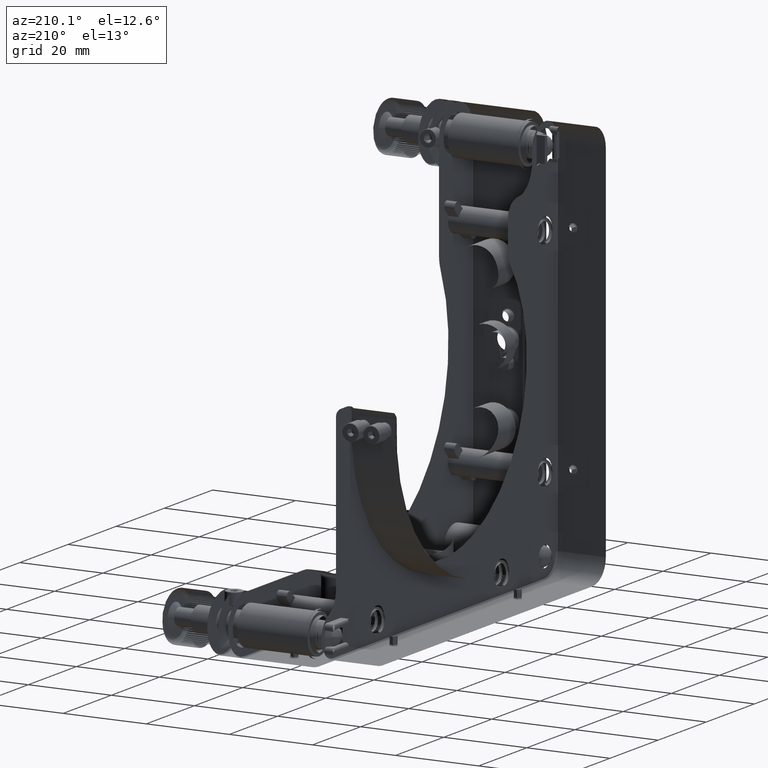
[diagram: clean part render]
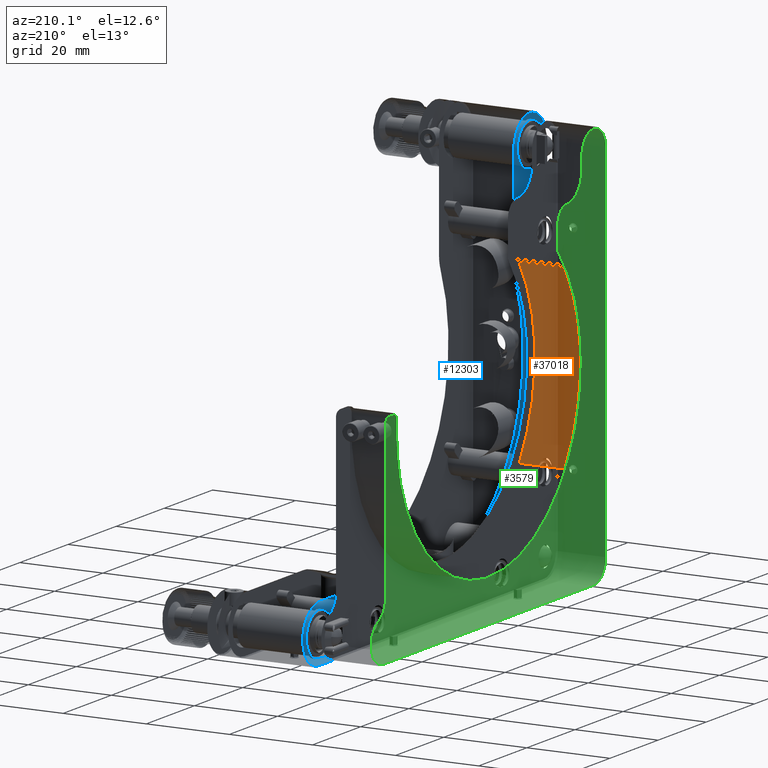
[diagram: same view with three faces highlighted in distinct colors, each labeled with its STEP entity id]
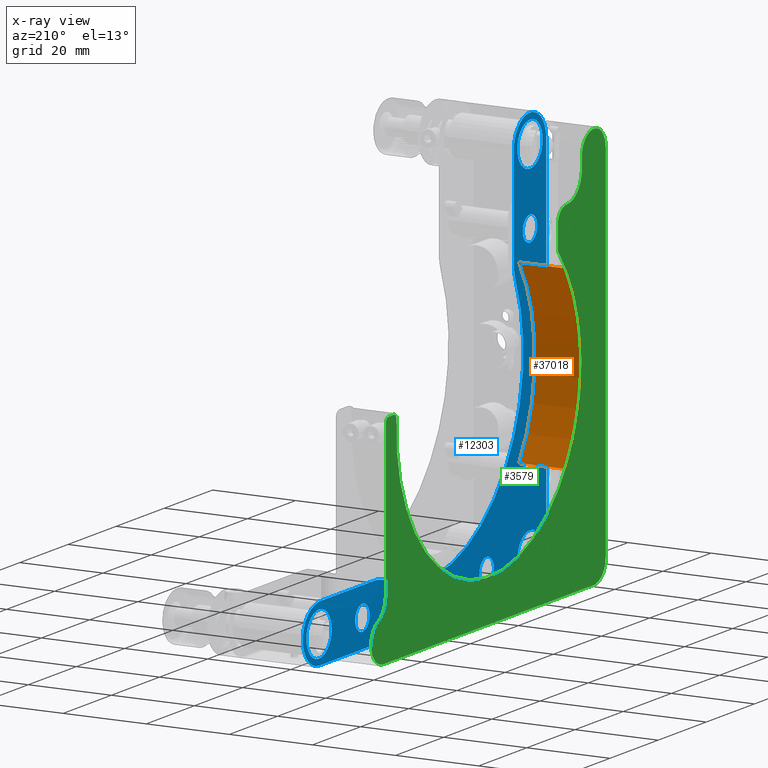
[diagram: x-ray of the same camera — body ghosted, the three highlighted faces saturated]
A machine part, auxiliary view with three faces highlighted in distinct colors.
The next image is the same camera in x-ray (body ghosted, the three faces saturated) — at least one of them is partly hidden behind the body in this view.
Their STEP definitions:

[orange] entity #37018 — the highlighted cylindrical surface (partial cylindrical patch) has radius 38.1 mm, axis along (-1, -0, -0).
#1055 = EDGE_LOOP ( 'NONE', ( #35704, #42558, #31043, #50745 ) ) ;
#1205 = CARTESIAN_POINT ( 'NONE',  ( -13.50000000000000000, -31.51381214945413234, 21.41237127944769369 ) ) ;
#1220 = CARTESIAN_POINT ( 'NONE',  ( -24.20000000000002061, -31.51381214945412523, -21.41237127944770791 ) ) ;
#4214 = CARTESIAN_POINT ( 'NONE',  ( -24.20000000000002061, -31.51381214945413234, 21.41237127944769725 ) ) ;
#5276 = DIRECTION ( 'NONE',  ( -1.000000000000000000, -0.000000000000000000, -0.000000000000000000 ) ) ;
#6664 = DIRECTION ( 'NONE',  ( 1.000000000000000000, 0.000000000000000000, 0.000000000000000000 ) ) ;
#6797 = CARTESIAN_POINT ( 'NONE',  ( -13.50000000000000000, -1.734723475976807094E-15, 0.000000000000000000 ) ) ;
#6810 = AXIS2_PLACEMENT_3D ( 'NONE', #6797, #27150, #10054 ) ;
#10054 = DIRECTION ( 'NONE',  ( 0.000000000000000000, 0.000000000000000000, 1.000000000000000000 ) ) ;
#17466 = DIRECTION ( 'NONE',  ( -1.000000000000000000, -0.000000000000000000, -0.000000000000000000 ) ) ;
#20874 = VERTEX_POINT ( 'NONE', #44682 ) ;
#21548 = LINE ( 'NONE', #42383, #46385 ) ;
#22586 = EDGE_CURVE ( 'NONE', #33685, #41620, #48254, .T. ) ;
#23820 = AXIS2_PLACEMENT_3D ( 'NONE', #53437, #17466, #25067 ) ;
#25067 = DIRECTION ( 'NONE',  ( 0.000000000000000000, 0.000000000000000000, 1.000000000000000000 ) ) ;
#25944 = VECTOR ( 'NONE', #6664, 1000.000000000000000 ) ;
#26338 = VERTEX_POINT ( 'NONE', #1205 ) ;
#27150 = DIRECTION ( 'NONE',  ( -1.000000000000000000, -0.000000000000000000, -0.000000000000000000 ) ) ;
#31043 = ORIENTED_EDGE ( 'NONE', *, *, #45499, .T. ) ;
#32469 = DIRECTION ( 'NONE',  ( -1.000000000000000000, 0.000000000000000000, 0.000000000000000000 ) ) ;
#32949 = EDGE_CURVE ( 'NONE', #33685, #20874, #47561, .T. ) ;
#33685 = VERTEX_POINT ( 'NONE', #1220 ) ;
#35704 = ORIENTED_EDGE ( 'NONE', *, *, #22586, .F. ) ;
#37018 = ADVANCED_FACE ( 'NONE', ( #52261 ), #47935, .T. ) ;
#38629 = CARTESIAN_POINT ( 'NONE',  ( -13.50000000000000000, -31.51381214945412523, -21.41237127944771146 ) ) ;
#40042 = CARTESIAN_POINT ( 'NONE',  ( -24.20000000000003482, -1.734723475976807094E-15, 0.000000000000000000 ) ) ;
#41350 = AXIS2_PLACEMENT_3D ( 'NONE', #40042, #32469, #44105 ) ;
#41620 = VERTEX_POINT ( 'NONE', #4214 ) ;
#42383 = CARTESIAN_POINT ( 'NONE',  ( -13.50000000000000000, -31.51381214945413234, 21.41237127944769725 ) ) ;
#42558 = ORIENTED_EDGE ( 'NONE', *, *, #32949, .T. ) ;
#42852 = CIRCLE ( 'NONE', #23820, 38.09999999999999432 ) ;
#44105 = DIRECTION ( 'NONE',  ( -9.106159978880871232E-17, 0.000000000000000000, 1.000000000000000000 ) ) ;
#44682 = CARTESIAN_POINT ( 'NONE',  ( -13.50000000000000000, -31.51381214945413234, -21.41237127944770080 ) ) ;
#45499 = EDGE_CURVE ( 'NONE', #20874, #26338, #42852, .T. ) ;
#46385 = VECTOR ( 'NONE', #5276, 1000.000000000000000 ) ;
#47561 = LINE ( 'NONE', #38629, #25944 ) ;
#47935 = CYLINDRICAL_SURFACE ( 'NONE', #6810, 38.09999999999999432 ) ;
#47953 = EDGE_CURVE ( 'NONE', #26338, #41620, #21548, .T. ) ;
#48254 = CIRCLE ( 'NONE', #41350, 38.10000000000002274 ) ;
#50745 = ORIENTED_EDGE ( 'NONE', *, *, #47953, .T. ) ;
#52261 = FACE_OUTER_BOUND ( 'NONE', #1055, .T. ) ;
#53437 = CARTESIAN_POINT ( 'NONE',  ( -13.50000000000000000, -1.734723475976807094E-15, 0.000000000000000000 ) ) ;

[blue] entity #12303 — the highlighted planar face has unit normal (1, -0, 0).
#76 = EDGE_CURVE ( 'NONE', #19224, #19224, #49901, .T. ) ;
#457 = PLANE ( 'NONE',  #7038 ) ;
#966 = CARTESIAN_POINT ( 'NONE',  ( -9.000000000000001776, -43.79999999999999716, -38.55000000000000426 ) ) ;
#1141 = CIRCLE ( 'NONE', #42665, 9.749999999999994671 ) ;
#1405 = ORIENTED_EDGE ( 'NONE', *, *, #34274, .T. ) ;
#1490 = VERTEX_POINT ( 'NONE', #34571 ) ;
#1742 = EDGE_CURVE ( 'NONE', #35210, #35210, #28833, .T. ) ;
#1749 = VERTEX_POINT ( 'NONE', #33172 ) ;
#2232 = ORIENTED_EDGE ( 'NONE', *, *, #19371, .T. ) ;
#2670 = EDGE_CURVE ( 'NONE', #52255, #33224, #49234, .T. ) ;
#3207 = LINE ( 'NONE', #12423, #41267 ) ;
#3714 = DIRECTION ( 'NONE',  ( -1.000000000000000000, -0.000000000000000000, -0.000000000000000000 ) ) ;
#4142 = CARTESIAN_POINT ( 'NONE',  ( -9.000000000000001776, 25.80000000000000071, -43.79999999999999716 ) ) ;
#4504 = CARTESIAN_POINT ( 'NONE',  ( -8.999999999999994671, -37.05000000000000426, 19.62963321104091463 ) ) ;
#4744 = ORIENTED_EDGE ( 'NONE', *, *, #76, .T. ) ;
#5039 = VERTEX_POINT ( 'NONE', #4504 ) ;
#5068 = DIRECTION ( 'NONE',  ( 0.000000000000000000, 0.000000000000000000, -1.000000000000000000 ) ) ;
#5180 = ORIENTED_EDGE ( 'NONE', *, *, #18703, .T. ) ;
#5262 = CARTESIAN_POINT ( 'NONE',  ( -8.999999999966895814, -43.80000000000004690, -50.55000000003308713 ) ) ;
#5343 = AXIS2_PLACEMENT_3D ( 'NONE', #4142, #20421, #33407 ) ;
#5398 = EDGE_CURVE ( 'NONE', #36537, #36537, #21791, .T. ) ;
#6421 = VERTEX_POINT ( 'NONE', #52170 ) ;
#6422 = CARTESIAN_POINT ( 'NONE',  ( -9.000000000000001776, -43.79999999999997584, 25.79999999999998295 ) ) ;
#6779 = DIRECTION ( 'NONE',  ( 0.000000000000000000, 0.000000000000000000, -1.000000000000000000 ) ) ;
#6911 = AXIS2_PLACEMENT_3D ( 'NONE', #11950, #24171, #36348 ) ;
#6915 = DIRECTION ( 'NONE',  ( 0.000000000000000000, 0.000000000000000000, -1.000000000000000000 ) ) ;
#7038 = AXIS2_PLACEMENT_3D ( 'NONE', #45691, #9130, #5068 ) ;
#7161 = ORIENTED_EDGE ( 'NONE', *, *, #7864, .T. ) ;
#7864 = EDGE_CURVE ( 'NONE', #33224, #47692, #1141, .T. ) ;
#8418 = CARTESIAN_POINT ( 'NONE',  ( -9.000000000000001776, 0.000000000000000000, 0.000000000000000000 ) ) ;
#8606 = FACE_BOUND ( 'NONE', #11447, .T. ) ;
#8861 = FACE_BOUND ( 'NONE', #49769, .T. ) ;
#8958 = CIRCLE ( 'NONE', #45286, 6.750000000067757355 ) ;
#9064 = EDGE_CURVE ( 'NONE', #5039, #1749, #14242, .T. ) ;
#9130 = DIRECTION ( 'NONE',  ( 1.000000000000000000, -0.000000000000000000, 0.000000000000000000 ) ) ;
#9490 = DIRECTION ( 'NONE',  ( 0.000000000000000000, 0.000000000000000000, 1.000000000000000000 ) ) ;
#10278 = VECTOR ( 'NONE', #30744, 1000.000000000000000 ) ;
#10843 = DIRECTION ( 'NONE',  ( -1.000000000000000000, -0.000000000000000000, -0.000000000000000000 ) ) ;
#11447 = EDGE_LOOP ( 'NONE', ( #47154 ) ) ;
#11592 = AXIS2_PLACEMENT_3D ( 'NONE', #14639, #38451, #9490 ) ;
#11950 = CARTESIAN_POINT ( 'NONE',  ( -9.000000000095299768, -43.79999999999999716, 43.79999999999998295 ) ) ;
#12303 = ADVANCED_FACE ( 'NONE', ( #17552, #8861, #37568, #33525, #25967, #13746, #8606, #42447 ), #457, .T. ) ;
#12423 = CARTESIAN_POINT ( 'NONE',  ( -9.000000000000001776, -50.54999999999998295, 0.000000000000000000 ) ) ;
#12841 = DIRECTION ( 'NONE',  ( 0.000000000000000000, 0.000000000000000000, 1.000000000000000000 ) ) ;
#13690 = EDGE_CURVE ( 'NONE', #28994, #31182, #3207, .T. ) ;
#13746 = FACE_BOUND ( 'NONE', #20649, .T. ) ;
#13996 = ORIENTED_EDGE ( 'NONE', *, *, #39025, .T. ) ;
#14053 = DIRECTION ( 'NONE',  ( 0.000000000000000000, 0.000000000000000000, -1.000000000000000000 ) ) ;
#14242 = LINE ( 'NONE', #35095, #10278 ) ;
#14639 = CARTESIAN_POINT ( 'NONE',  ( -9.000000000000001776, 43.79999999999999716, -43.79999999999999005 ) ) ;
#15009 = CARTESIAN_POINT ( 'NONE',  ( -8.999999999984744647, -50.55000000004483240, -43.79999999999999716 ) ) ;
#15147 = EDGE_LOOP ( 'NONE', ( #4744 ) ) ;
#15231 = EDGE_CURVE ( 'NONE', #6421, #6421, #39261, .T. ) ;
#15974 = CARTESIAN_POINT ( 'NONE',  ( -9.000000000000001776, 50.79999999999999716, -36.79999999999999716 ) ) ;
#16044 = EDGE_CURVE ( 'NONE', #31182, #20188, #8958, .T. ) ;
#16311 = ORIENTED_EDGE ( 'NONE', *, *, #2670, .T. ) ;
#16685 = ORIENTED_EDGE ( 'NONE', *, *, #1742, .T. ) ;
#17552 = FACE_BOUND ( 'NONE', #35992, .T. ) ;
#17787 = DIRECTION ( 'NONE',  ( 0.000000000000000000, 0.000000000000000000, 1.000000000000000000 ) ) ;
#17872 = VECTOR ( 'NONE', #45712, 1000.000000000000000 ) ;
#18054 = VERTEX_POINT ( 'NONE', #966 ) ;
#18099 = EDGE_LOOP ( 'NONE', ( #29660 ) ) ;
#18245 = CIRCLE ( 'NONE', #26026, 3.000000000000006217 ) ;
#18703 = EDGE_CURVE ( 'NONE', #37596, #52255, #50936, .T. ) ;
#19224 = VERTEX_POINT ( 'NONE', #23567 ) ;
#19371 = EDGE_CURVE ( 'NONE', #20188, #37596, #26401, .T. ) ;
#19745 = CARTESIAN_POINT ( 'NONE',  ( -8.874999999993226751, 43.80000000000000426, -36.92499999998238280 ) ) ;
#19940 = CIRCLE ( 'NONE', #43258, 5.249999999999997335 ) ;
#19949 = ORIENTED_EDGE ( 'NONE', *, *, #9064, .T. ) ;
#20188 = VERTEX_POINT ( 'NONE', #5262 ) ;
#20421 = DIRECTION ( 'NONE',  ( -1.000000000000000000, -0.000000000000000000, -0.000000000000000000 ) ) ;
#20540 = CARTESIAN_POINT ( 'NONE',  ( -8.999999999999994671, -37.80886699507389892, 15.85842288970792602 ) ) ;
#20649 = EDGE_LOOP ( 'NONE', ( #50451 ) ) ;
#21401 = CARTESIAN_POINT ( 'NONE',  ( -8.999999999933789852, -43.79999999999999005, -43.79999999999999716 ) ) ;
#21428 = DIRECTION ( 'NONE',  ( -1.000000000000000000, 0.000000000000000000, 0.000000000000000000 ) ) ;
#21514 = ORIENTED_EDGE ( 'NONE', *, *, #13690, .T. ) ;
#21597 = DIRECTION ( 'NONE',  ( 1.000000000000000000, 0.000000000000000000, 0.000000000000000000 ) ) ;
#21791 = CIRCLE ( 'NONE', #5343, 3.000000000000002665 ) ;
#22778 = CARTESIAN_POINT ( 'NONE',  ( -9.000000000019229063, -50.54999999998075566, 43.79999999999997584 ) ) ;
#22901 = VERTEX_POINT ( 'NONE', #20540 ) ;
#23240 = CIRCLE ( 'NONE', #6911, 6.750000000010913936 ) ;
#23567 = CARTESIAN_POINT ( 'NONE',  ( -9.000000000000001776, -25.80000000000000071, -46.80000000000000426 ) ) ;
#23647 = ORIENTED_EDGE ( 'NONE', *, *, #44648, .T. ) ;
#24171 = DIRECTION ( 'NONE',  ( 1.000000000000000000, 0.000000000000000000, 0.000000000000000000 ) ) ;
#24739 = DIRECTION ( 'NONE',  ( 0.000000000000000000, 0.000000000000000000, -1.000000000000000000 ) ) ;
#25560 = CARTESIAN_POINT ( 'NONE',  ( -8.999999999999985789, -46.80000000000001137, 19.62963321104090753 ) ) ;
#25967 = FACE_BOUND ( 'NONE', #15147, .T. ) ;
#26026 = AXIS2_PLACEMENT_3D ( 'NONE', #48187, #10843, #6779 ) ;
#26401 = LINE ( 'NONE', #42887, #36783 ) ;
#28358 = AXIS2_PLACEMENT_3D ( 'NONE', #31024, #47787, #6915 ) ;
#28833 = CIRCLE ( 'NONE', #46981, 5.249999999999997335 ) ;
#28994 = VERTEX_POINT ( 'NONE', #22778 ) ;
#29354 = AXIS2_PLACEMENT_3D ( 'NONE', #25560, #41780, #24739 ) ;
#29660 = ORIENTED_EDGE ( 'NONE', *, *, #15231, .T. ) ;
#29807 = DIRECTION ( 'NONE',  ( 0.000000000000000000, 0.000000000000000000, 1.000000000000000000 ) ) ;
#30231 = VERTEX_POINT ( 'NONE', #38881 ) ;
#30551 = DIRECTION ( 'NONE',  ( -1.000000000000000000, -0.000000000000000000, -0.000000000000000000 ) ) ;
#30602 = CARTESIAN_POINT ( 'NONE',  ( -9.000000000000001776, -43.79999999999999716, 49.04999999999998295 ) ) ;
#30744 = DIRECTION ( 'NONE',  ( -0.000000000000000000, -0.000000000000000000, 1.000000000000000000 ) ) ;
#31024 = CARTESIAN_POINT ( 'NONE',  ( -9.000000000000001776, -25.80000000000000071, -43.79999999999999716 ) ) ;
#31182 = VERTEX_POINT ( 'NONE', #15009 ) ;
#31956 = EDGE_CURVE ( 'NONE', #30231, #30231, #47569, .T. ) ;
#32138 = CARTESIAN_POINT ( 'NONE',  ( -8.874999999999994671, 19.62963321104090753, -36.92500000000000426 ) ) ;
#33115 = ORIENTED_EDGE ( 'NONE', *, *, #16044, .T. ) ;
#33172 = CARTESIAN_POINT ( 'NONE',  ( -9.000000000047650772, -37.05000000004766036, 43.79999999999999716 ) ) ;
#33224 = VERTEX_POINT ( 'NONE', #32138 ) ;
#33274 = DIRECTION ( 'NONE',  ( 0.000000000000000000, 0.000000000000000000, -1.000000000000000000 ) ) ;
#33320 = AXIS2_PLACEMENT_3D ( 'NONE', #8418, #21428, #29807 ) ;
#33407 = DIRECTION ( 'NONE',  ( 0.000000000000000000, 0.000000000000000000, -1.000000000000000000 ) ) ;
#33436 = CARTESIAN_POINT ( 'NONE',  ( -9.000000000000001776, -43.79999999999999716, 43.79999999999998295 ) ) ;
#33525 = FACE_BOUND ( 'NONE', #41373, .T. ) ;
#33647 = AXIS2_PLACEMENT_3D ( 'NONE', #6422, #30551, #14053 ) ;
#33789 = CARTESIAN_POINT ( 'NONE',  ( -8.999999999933796957, 43.79999999999999716, -43.79999999999999005 ) ) ;
#34118 = DIRECTION ( 'NONE',  ( 0.000000000000000000, 0.000000000000000000, -1.000000000000000000 ) ) ;
#34274 = EDGE_CURVE ( 'NONE', #18054, #18054, #19940, .T. ) ;
#34553 = AXIS2_PLACEMENT_3D ( 'NONE', #33789, #50524, #34586 ) ;
#34571 = CARTESIAN_POINT ( 'NONE',  ( -9.000000000000001776, -43.79999999999999716, -28.80000000000000782 ) ) ;
#34586 = DIRECTION ( 'NONE',  ( 0.000000000000000000, 0.000000000000000000, -1.000000000000000000 ) ) ;
#35068 = CARTESIAN_POINT ( 'NONE',  ( -8.999999999984748200, 43.79999999999999716, -50.55000000004483240 ) ) ;
#35083 = EDGE_CURVE ( 'NONE', #1490, #1490, #18245, .T. ) ;
#35095 = CARTESIAN_POINT ( 'NONE',  ( -9.000000000000001776, -37.05000000000001137, 0.000000000000000000 ) ) ;
#35210 = VERTEX_POINT ( 'NONE', #30602 ) ;
#35905 = CIRCLE ( 'NONE', #33320, 41.00000000000001421 ) ;
#35992 = EDGE_LOOP ( 'NONE', ( #16685 ) ) ;
#36005 = CARTESIAN_POINT ( 'NONE',  ( -9.000000000000001776, 25.80000000000000071, -46.80000000000000426 ) ) ;
#36348 = DIRECTION ( 'NONE',  ( 0.000000000000000000, 0.000000000000000000, -1.000000000000000000 ) ) ;
#36537 = VERTEX_POINT ( 'NONE', #36005 ) ;
#36783 = VECTOR ( 'NONE', #47997, 1000.000000000000000 ) ;
#37568 = FACE_BOUND ( 'NONE', #18099, .T. ) ;
#37596 = VERTEX_POINT ( 'NONE', #35068 ) ;
#38451 = DIRECTION ( 'NONE',  ( -1.000000000000000000, -0.000000000000000000, -0.000000000000000000 ) ) ;
#38881 = CARTESIAN_POINT ( 'NONE',  ( -9.000000000000001776, -43.79999999999997584, 22.79999999999997939 ) ) ;
#39025 = EDGE_CURVE ( 'NONE', #22901, #5039, #52663, .T. ) ;
#39261 = CIRCLE ( 'NONE', #11592, 5.250000000000004441 ) ;
#40460 = EDGE_CURVE ( 'NONE', #1749, #28994, #23240, .T. ) ;
#40822 = CARTESIAN_POINT ( 'NONE',  ( -9.000000000000001776, -43.79999999999999716, -43.79999999999999716 ) ) ;
#41267 = VECTOR ( 'NONE', #33274, 1000.000000000000000 ) ;
#41373 = EDGE_LOOP ( 'NONE', ( #42901 ) ) ;
#41626 = CARTESIAN_POINT ( 'NONE',  ( -9.000000000000000000, 19.62963321104090753, -46.80000000000001137 ) ) ;
#41780 = DIRECTION ( 'NONE',  ( 1.000000000000000000, -0.000000000000000000, 0.000000000000000000 ) ) ;
#42447 = FACE_OUTER_BOUND ( 'NONE', #44330, .T. ) ;
#42665 = AXIS2_PLACEMENT_3D ( 'NONE', #41626, #21597, #49986 ) ;
#42764 = DIRECTION ( 'NONE',  ( 1.000000000000000000, 0.000000000000000000, 0.000000000000000000 ) ) ;
#42887 = CARTESIAN_POINT ( 'NONE',  ( -9.000000000000001776, 0.000000000000000000, -50.54999999999998295 ) ) ;
#42901 = ORIENTED_EDGE ( 'NONE', *, *, #5398, .T. ) ;
#43258 = AXIS2_PLACEMENT_3D ( 'NONE', #40822, #3714, #17787 ) ;
#44330 = EDGE_LOOP ( 'NONE', ( #13996, #19949, #52284, #21514, #33115, #2232, #5180, #16311, #7161, #23647 ) ) ;
#44648 = EDGE_CURVE ( 'NONE', #47692, #22901, #35905, .T. ) ;
#45286 = AXIS2_PLACEMENT_3D ( 'NONE', #21401, #42764, #34118 ) ;
#45691 = CARTESIAN_POINT ( 'NONE',  ( -9.000000000000001776, 0.000000000000000000, 0.000000000000000000 ) ) ;
#45712 = DIRECTION ( 'NONE',  ( 0.000000000000000000, -1.000000000000000000, 0.000000000000000000 ) ) ;
#46134 = DIRECTION ( 'NONE',  ( -1.000000000000000000, -0.000000000000000000, -0.000000000000000000 ) ) ;
#46981 = AXIS2_PLACEMENT_3D ( 'NONE', #33436, #46134, #12841 ) ;
#47023 = CARTESIAN_POINT ( 'NONE',  ( -9.000000000000001776, 15.85842288970792957, -37.80886699507390603 ) ) ;
#47154 = ORIENTED_EDGE ( 'NONE', *, *, #31956, .T. ) ;
#47569 = CIRCLE ( 'NONE', #33647, 3.000000000000002665 ) ;
#47692 = VERTEX_POINT ( 'NONE', #47023 ) ;
#47787 = DIRECTION ( 'NONE',  ( -1.000000000000000000, -0.000000000000000000, -0.000000000000000000 ) ) ;
#47997 = DIRECTION ( 'NONE',  ( 0.000000000000000000, 1.000000000000000000, 0.000000000000000000 ) ) ;
#48187 = CARTESIAN_POINT ( 'NONE',  ( -9.000000000000001776, -43.79999999999999716, -25.80000000000000071 ) ) ;
#49234 = LINE ( 'NONE', #15974, #17872 ) ;
#49769 = EDGE_LOOP ( 'NONE', ( #1405 ) ) ;
#49901 = CIRCLE ( 'NONE', #28358, 3.000000000000002665 ) ;
#49986 = DIRECTION ( 'NONE',  ( 0.000000000000000000, 0.000000000000000000, -1.000000000000000000 ) ) ;
#50451 = ORIENTED_EDGE ( 'NONE', *, *, #35083, .T. ) ;
#50524 = DIRECTION ( 'NONE',  ( 1.000000000000000000, 0.000000000000000000, 0.000000000000000000 ) ) ;
#50936 = CIRCLE ( 'NONE', #34553, 6.750000000067757355 ) ;
#52170 = CARTESIAN_POINT ( 'NONE',  ( -9.000000000000001776, 43.79999999999999716, -38.54999999999999005 ) ) ;
#52255 = VERTEX_POINT ( 'NONE', #19745 ) ;
#52284 = ORIENTED_EDGE ( 'NONE', *, *, #40460, .T. ) ;
#52663 = CIRCLE ( 'NONE', #29354, 9.749999999999998224 ) ;

[green] entity #3579 — the highlighted planar face has unit normal (-1, 0, 0).
#676 = DIRECTION ( 'NONE',  ( 0.000000000000000000, 0.000000000000000000, 1.000000000000000000 ) ) ;
#1469 = CIRCLE ( 'NONE', #45575, 3.699999999911347093 ) ;
#2405 = CIRCLE ( 'NONE', #51714, 1.199999999921784521 ) ;
#2815 = CARTESIAN_POINT ( 'NONE',  ( -24.49999999999998579, 43.95000000000000284, -48.49999999999998579 ) ) ;
#3052 = VERTEX_POINT ( 'NONE', #52160 ) ;
#3172 = VERTEX_POINT ( 'NONE', #40258 ) ;
#3579 = ADVANCED_FACE ( 'NONE', ( #52038 ), #36611, .F. ) ;
#3711 = VERTEX_POINT ( 'NONE', #28507 ) ;
#3807 = CARTESIAN_POINT ( 'NONE',  ( -24.49999999998908606, -32.29999999999999716, 31.20000000000002416 ) ) ;
#6142 = VERTEX_POINT ( 'NONE', #47656 ) ;
#6706 = AXIS2_PLACEMENT_3D ( 'NONE', #18174, #35487, #38442 ) ;
#7192 = CARTESIAN_POINT ( 'NONE',  ( -24.49999999996066435, -38.59999999991983799, 41.20000000000002416 ) ) ;
#7642 = DIRECTION ( 'NONE',  ( 1.000000000000000000, 0.000000000000000000, 0.000000000000000000 ) ) ;
#8568 = AXIS2_PLACEMENT_3D ( 'NONE', #47155, #35004, #38764 ) ;
#8822 = DIRECTION ( 'NONE',  ( 1.000000000000000000, -0.000000000000000000, -0.000000000000000000 ) ) ;
#9202 = DIRECTION ( 'NONE',  ( 1.000000000000000000, 0.000000000000000000, 0.000000000000000000 ) ) ;
#9651 = CARTESIAN_POINT ( 'NONE',  ( -24.49999999999556621, -28.89696969696073126, 25.28883434115428130 ) ) ;
#9821 = VERTEX_POINT ( 'NONE', #34030 ) ;
#10289 = DIRECTION ( 'NONE',  ( 1.000000000000000000, 0.000000000000000000, 0.000000000000000000 ) ) ;
#10891 = DIRECTION ( 'NONE',  ( 0.000000000000000000, 0.000000000000000000, 1.000000000000000000 ) ) ;
#11415 = DIRECTION ( 'NONE',  ( -5.507058653982096722E-16, -1.000000000000000000, 0.000000000000000000 ) ) ;
#11531 = DIRECTION ( 'NONE',  ( 0.000000000000000000, 0.000000000000000000, 1.000000000000000000 ) ) ;
#11605 = ORIENTED_EDGE ( 'NONE', *, *, #51309, .T. ) ;
#11733 = EDGE_LOOP ( 'NONE', ( #31980, #50775, #45190, #33307, #47295, #26068, #11605, #43294, #33570, #37794, #43068, #16455, #31879, #37016, #25203, #14499 ) ) ;
#12189 = EDGE_CURVE ( 'NONE', #3711, #45772, #45167, .T. ) ;
#12351 = VERTEX_POINT ( 'NONE', #18086 ) ;
#12744 = CARTESIAN_POINT ( 'NONE',  ( -24.50000000004592948, -43.55000000000000426, -43.55000000000000426 ) ) ;
#13499 = CIRCLE ( 'NONE', #35162, 4.950000000046854254 ) ;
#14410 = LINE ( 'NONE', #19016, #22296 ) ;
#14499 = ORIENTED_EDGE ( 'NONE', *, *, #12189, .T. ) ;
#15406 = EDGE_CURVE ( 'NONE', #18830, #6142, #18522, .T. ) ;
#15510 = CARTESIAN_POINT ( 'NONE',  ( -24.50000000000000000, 43.95000000000000284, -43.54999999999998295 ) ) ;
#15544 = DIRECTION ( 'NONE',  ( 1.000000000000000000, -1.156482317392409220E-15, 0.000000000000000000 ) ) ;
#15878 = DIRECTION ( 'NONE',  ( 3.965082230804129973E-17, 3.965082230803854488E-17, -1.000000000000000000 ) ) ;
#16436 = CARTESIAN_POINT ( 'NONE',  ( -24.50000000000000000, 54.20000000000000995, 3.899999999999993694 ) ) ;
#16455 = ORIENTED_EDGE ( 'NONE', *, *, #43960, .T. ) ;
#16875 = EDGE_CURVE ( 'NONE', #23013, #52523, #13499, .T. ) ;
#18086 = CARTESIAN_POINT ( 'NONE',  ( -24.49999999999454658, 42.80000000000544702, 2.700000000000000178 ) ) ;
#18174 = CARTESIAN_POINT ( 'NONE',  ( -24.49999999993224264, -29.80000000000000071, 26.07911041427601972 ) ) ;
#18522 = CIRCLE ( 'NONE', #53081, 38.39999999999999858 ) ;
#18542 = DIRECTION ( 'NONE',  ( 1.586032892321651989E-16, 1.000000000000000000, 1.586032892321578527E-16 ) ) ;
#18813 = AXIS2_PLACEMENT_3D ( 'NONE', #40909, #32004, #11415 ) ;
#18830 = VERTEX_POINT ( 'NONE', #9651 ) ;
#19016 = CARTESIAN_POINT ( 'NONE',  ( -24.50000000000000355, 42.79999999999998295, 7.200000000000001066 ) ) ;
#19078 = AXIS2_PLACEMENT_3D ( 'NONE', #15510, #19839, #10891 ) ;
#19284 = DIRECTION ( 'NONE',  ( -1.000000000000000000, 1.156482317392409417E-15, -0.000000000000000000 ) ) ;
#19839 = DIRECTION ( 'NONE',  ( -1.000000000000000000, 0.000000000000000000, 0.000000000000000000 ) ) ;
#19898 = AXIS2_PLACEMENT_3D ( 'NONE', #12744, #9202, #33073 ) ;
#21275 = LINE ( 'NONE', #16436, #27239 ) ;
#22296 = VECTOR ( 'NONE', #31200, 1000.000000000000000 ) ;
#22386 = CIRCLE ( 'NONE', #39654, 4.950000000012728663 ) ;
#22504 = CARTESIAN_POINT ( 'NONE',  ( -24.49999999998908606, -43.54999999999999005, 43.94999999999999574 ) ) ;
#22725 = VERTEX_POINT ( 'NONE', #27360 ) ;
#23013 = VERTEX_POINT ( 'NONE', #46494 ) ;
#23367 = CARTESIAN_POINT ( 'NONE',  ( -24.49999999998908606, 39.50784732176633440, 2.700000000000001066 ) ) ;
#24009 = AXIS2_PLACEMENT_3D ( 'NONE', #23367, #19284, #28488 ) ;
#24875 = CARTESIAN_POINT ( 'NONE',  ( -24.50000000000000000, -28.60000000000000142, 4.200000000000009059 ) ) ;
#25203 = ORIENTED_EDGE ( 'NONE', *, *, #27452, .F. ) ;
#25254 = EDGE_CURVE ( 'NONE', #30925, #3172, #48874, .T. ) ;
#25694 = CARTESIAN_POINT ( 'NONE',  ( -24.49999999998908606, 45.95414634143680388, -39.02386506594539384 ) ) ;
#26068 = ORIENTED_EDGE ( 'NONE', *, *, #39587, .T. ) ;
#26602 = CIRCLE ( 'NONE', #24009, 1.199999999921784521 ) ;
#26712 = VERTEX_POINT ( 'NONE', #44239 ) ;
#27239 = VECTOR ( 'NONE', #42104, 1000.000000000000000 ) ;
#27360 = CARTESIAN_POINT ( 'NONE',  ( -24.49999999998908606, -32.29999999999999716, 34.90000000004235403 ) ) ;
#27452 = EDGE_CURVE ( 'NONE', #3711, #18830, #51655, .T. ) ;
#28266 = CARTESIAN_POINT ( 'NONE',  ( -24.49999999998908606, 41.60000000000000142, 2.700000000000000622 ) ) ;
#28488 = DIRECTION ( 'NONE',  ( 0.000000000000000000, 1.000000000000000000, 1.807003620926953882E-15 ) ) ;
#28507 = CARTESIAN_POINT ( 'NONE',  ( -24.49999999996612132, -28.59999999996612630, 26.07911041427601972 ) ) ;
#28727 = CARTESIAN_POINT ( 'NONE',  ( -24.49999999999454303, 39.50784732176633440, 3.900000000005451994 ) ) ;
#28952 = CARTESIAN_POINT ( 'NONE',  ( -24.49999999999181455, -48.50000000000149925, 43.95000000000000284 ) ) ;
#30714 = LINE ( 'NONE', #2815, #38694 ) ;
#30925 = VERTEX_POINT ( 'NONE', #7192 ) ;
#31200 = DIRECTION ( 'NONE',  ( -7.625158136161790686E-17, 7.625158136161459118E-17, 1.000000000000000000 ) ) ;
#31879 = ORIENTED_EDGE ( 'NONE', *, *, #48791, .F. ) ;
#31975 = CIRCLE ( 'NONE', #19898, 4.949999999989990407 ) ;
#31980 = ORIENTED_EDGE ( 'NONE', *, *, #48677, .T. ) ;
#32004 = DIRECTION ( 'NONE',  ( 1.000000000000000000, -2.753529327015892549E-16, -0.000000000000000000 ) ) ;
#33073 = DIRECTION ( 'NONE',  ( 0.000000000000000000, 0.000000000000000000, -1.000000000000000000 ) ) ;
#33307 = ORIENTED_EDGE ( 'NONE', *, *, #40868, .T. ) ;
#33570 = ORIENTED_EDGE ( 'NONE', *, *, #39174, .F. ) ;
#34030 = CARTESIAN_POINT ( 'NONE',  ( -24.50000000007435119, -43.55000000000000426, -48.49999999997558575 ) ) ;
#34688 = DIRECTION ( 'NONE',  ( 0.000000000000000000, 0.000000000000000000, -1.000000000000000000 ) ) ;
#35004 = DIRECTION ( 'NONE',  ( 1.000000000000000000, -0.000000000000000000, -0.000000000000000000 ) ) ;
#35162 = AXIS2_PLACEMENT_3D ( 'NONE', #51850, #7642, #35638 ) ;
#35487 = DIRECTION ( 'NONE',  ( -1.000000000000000000, 0.000000000000000000, -0.000000000000000000 ) ) ;
#35549 = DIRECTION ( 'NONE',  ( 1.000000000000000000, 0.000000000000000000, 0.000000000000000000 ) ) ;
#35638 = DIRECTION ( 'NONE',  ( 0.000000000000000000, 0.000000000000000000, -1.000000000000000000 ) ) ;
#36218 = EDGE_CURVE ( 'NONE', #45110, #44253, #36454, .T. ) ;
#36383 = DIRECTION ( 'NONE',  ( 0.000000000000000000, 1.000000000000000000, 0.000000000000000000 ) ) ;
#36454 = LINE ( 'NONE', #49133, #50124 ) ;
#36611 = PLANE ( 'NONE',  #19078 ) ;
#37016 = ORIENTED_EDGE ( 'NONE', *, *, #15406, .F. ) ;
#37186 = CARTESIAN_POINT ( 'NONE',  ( -24.50000000002296474, -48.49999999997700684, -43.55000000000000426 ) ) ;
#37794 = ORIENTED_EDGE ( 'NONE', *, *, #51725, .T. ) ;
#38442 = DIRECTION ( 'NONE',  ( 0.000000000000000000, -5.782411586449294202E-15, -1.000000000000000000 ) ) ;
#38694 = VECTOR ( 'NONE', #18542, 1000.000000000000000 ) ;
#38764 = DIRECTION ( 'NONE',  ( 0.000000000000000000, 1.309225264893156522E-15, 1.000000000000000000 ) ) ;
#39174 = EDGE_CURVE ( 'NONE', #26712, #52523, #46640, .T. ) ;
#39587 = EDGE_CURVE ( 'NONE', #44253, #9821, #31975, .T. ) ;
#39654 = AXIS2_PLACEMENT_3D ( 'NONE', #22504, #10289, #34688 ) ;
#39776 = VECTOR ( 'NONE', #11531, 1000.000000000000000 ) ;
#40258 = CARTESIAN_POINT ( 'NONE',  ( -24.49999999999454303, -38.59999999999455866, 43.94999999999999574 ) ) ;
#40353 = CARTESIAN_POINT ( 'NONE',  ( -24.49999999999454303, -28.59999999999454801, 31.20000000000002416 ) ) ;
#40868 = EDGE_CURVE ( 'NONE', #3172, #45110, #22386, .T. ) ;
#40909 = CARTESIAN_POINT ( 'NONE',  ( -24.49999999998908251, -32.29999999999999716, 41.20000000000002416 ) ) ;
#42104 = DIRECTION ( 'NONE',  ( -6.308085367188388762E-17, -1.000000000000000000, 6.308085367188142243E-17 ) ) ;
#42140 = CIRCLE ( 'NONE', #18813, 6.299999999899934089 ) ;
#43068 = ORIENTED_EDGE ( 'NONE', *, *, #49946, .T. ) ;
#43294 = ORIENTED_EDGE ( 'NONE', *, *, #16875, .T. ) ;
#43960 = EDGE_CURVE ( 'NONE', #3052, #50487, #21275, .T. ) ;
#44239 = CARTESIAN_POINT ( 'NONE',  ( -24.50000000000602540, 42.79999999999721183, -34.17770038891197970 ) ) ;
#44253 = VERTEX_POINT ( 'NONE', #37186 ) ;
#44816 = CARTESIAN_POINT ( 'NONE',  ( -24.50000000000000000, -38.60000000000001563, 49.20000000000002416 ) ) ;
#45110 = VERTEX_POINT ( 'NONE', #28952 ) ;
#45167 = LINE ( 'NONE', #24875, #47654 ) ;
#45190 = ORIENTED_EDGE ( 'NONE', *, *, #25254, .T. ) ;
#45575 = AXIS2_PLACEMENT_3D ( 'NONE', #3807, #35549, #49022 ) ;
#45772 = VERTEX_POINT ( 'NONE', #40353 ) ;
#45921 = CARTESIAN_POINT ( 'NONE',  ( -24.49999999999999645, -1.734723475976807094E-15, 0.000000000000000000 ) ) ;
#46494 = CARTESIAN_POINT ( 'NONE',  ( -24.49999999999453593, 43.95000000000000284, -48.50000000000544276 ) ) ;
#46640 = CIRCLE ( 'NONE', #8568, 5.299999999979758236 ) ;
#47155 = CARTESIAN_POINT ( 'NONE',  ( -24.49999999998908606, 48.09999999999998010, -34.17770038891198681 ) ) ;
#47295 = ORIENTED_EDGE ( 'NONE', *, *, #36218, .T. ) ;
#47654 = VECTOR ( 'NONE', #49210, 1000.000000000000000 ) ;
#47656 = CARTESIAN_POINT ( 'NONE',  ( -24.49999999999470646, 38.31063982728644390, 2.618181818186197773 ) ) ;
#48677 = EDGE_CURVE ( 'NONE', #45772, #22725, #1469, .T. ) ;
#48791 = EDGE_CURVE ( 'NONE', #6142, #50487, #26602, .T. ) ;
#48874 = LINE ( 'NONE', #44816, #39776 ) ;
#49022 = DIRECTION ( 'NONE',  ( 0.000000000000000000, 0.000000000000000000, -1.000000000000000000 ) ) ;
#49133 = CARTESIAN_POINT ( 'NONE',  ( -24.49999999999999645, -48.49999999999997158, -43.55000000000000426 ) ) ;
#49210 = DIRECTION ( 'NONE',  ( 0.000000000000000000, 0.000000000000000000, 1.000000000000000000 ) ) ;
#49946 = EDGE_CURVE ( 'NONE', #12351, #3052, #2405, .T. ) ;
#50124 = VECTOR ( 'NONE', #15878, 1000.000000000000000 ) ;
#50487 = VERTEX_POINT ( 'NONE', #28727 ) ;
#50775 = ORIENTED_EDGE ( 'NONE', *, *, #51912, .F. ) ;
#51309 = EDGE_CURVE ( 'NONE', #9821, #23013, #30714, .T. ) ;
#51655 = CIRCLE ( 'NONE', #6706, 1.200000000029066705 ) ;
#51714 = AXIS2_PLACEMENT_3D ( 'NONE', #28266, #15544, #36383 ) ;
#51725 = EDGE_CURVE ( 'NONE', #26712, #12351, #14410, .T. ) ;
#51850 = CARTESIAN_POINT ( 'NONE',  ( -24.49999999998908606, 43.95000000000000284, -43.54999999999998295 ) ) ;
#51912 = EDGE_CURVE ( 'NONE', #30925, #22725, #42140, .T. ) ;
#52038 = FACE_OUTER_BOUND ( 'NONE', #11733, .T. ) ;
#52160 = CARTESIAN_POINT ( 'NONE',  ( -24.49999999998908606, 41.60000000000000142, 3.899999999963071673 ) ) ;
#52523 = VERTEX_POINT ( 'NONE', #25694 ) ;
#53081 = AXIS2_PLACEMENT_3D ( 'NONE', #45921, #8822, #676 ) ;